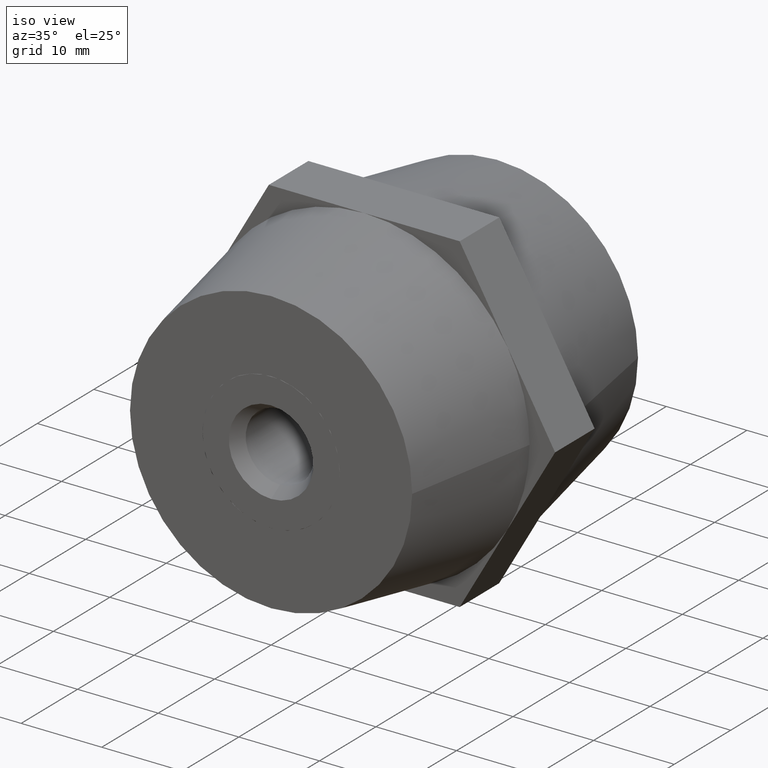
[diagram: clean part render]
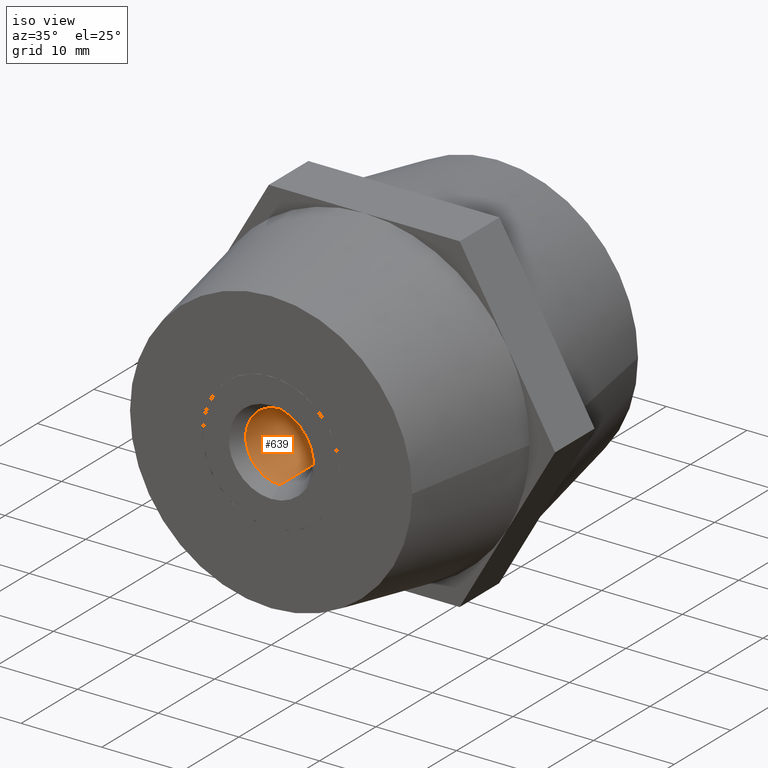
[diagram: same view with one face highlighted and labeled with its STEP entity id]
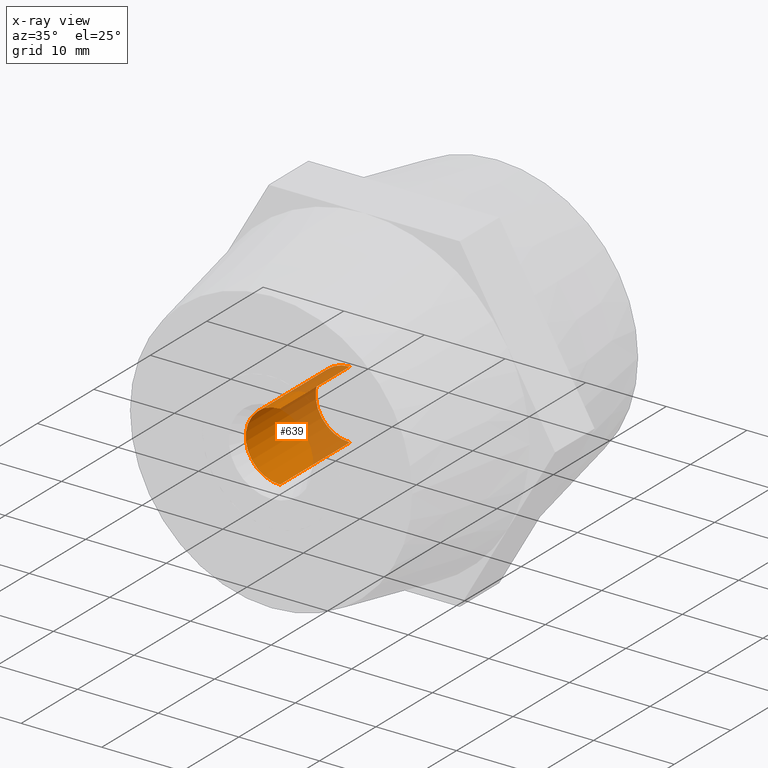
[diagram: x-ray of the same camera — body ghosted, the highlighted face saturated]
A machine part, iso view. The second image highlights one B-rep face of the part: STEP entity #639.
The next image is the same camera in x-ray: the body ghosted, the highlighted face saturated — about 37% of this face is hidden behind the body in this view.
In plain terms, the highlighted cylindrical surface (partial cylindrical patch) has radius 4.25 mm, axis along (-0, -1, 0).
Its self-contained STEP definition (entity closure, byte-faithful):
#5 = ORIENTED_EDGE ( 'NONE', *, *, #1758, .T. ) ;
#125 = CARTESIAN_POINT ( 'NONE',  ( 5.204748896376250700E-016, 15.43031442288250000, -4.250000000000000000 ) ) ;
#216 = ORIENTED_EDGE ( 'NONE', *, *, #2015, .F. ) ;
#295 = CARTESIAN_POINT ( 'NONE',  ( 0.0000000000000000000, 17.00000000000000000, 0.0000000000000000000 ) ) ;
#345 = DIRECTION ( 'NONE',  ( 0.0000000000000000000, 1.000000000000000000, 0.0000000000000000000 ) ) ;
#371 = AXIS2_PLACEMENT_3D ( 'NONE', #295, #2748, #1521 ) ;
#618 = EDGE_CURVE ( 'NONE', #2041, #3085, #3740, .T. ) ;
#620 = LINE ( 'NONE', #3438, #3787 ) ;
#639 = ADVANCED_FACE ( 'NONE', ( #1553 ), #1308, .F. ) ;
#896 = VERTEX_POINT ( 'NONE', #125 ) ;
#960 = AXIS2_PLACEMENT_3D ( 'NONE', #2768, #345, #1874 ) ;
#1147 = ORIENTED_EDGE ( 'NONE', *, *, #2884, .T. ) ;
#1308 = CYLINDRICAL_SURFACE ( 'NONE', #371, 4.250000000000000000 ) ;
#1394 = DIRECTION ( 'NONE',  ( 0.0000000000000000000, 1.000000000000000000, 0.0000000000000000000 ) ) ;
#1509 = CARTESIAN_POINT ( 'NONE',  ( 0.0000000000000000000, 3.050000000000000300, 0.0000000000000000000 ) ) ;
#1521 = DIRECTION ( 'NONE',  ( 0.0000000000000000000, 0.0000000000000000000, 1.000000000000000000 ) ) ;
#1553 = FACE_OUTER_BOUND ( 'NONE', #2608, .T. ) ;
#1758 = EDGE_CURVE ( 'NONE', #3651, #896, #2670, .T. ) ;
#1768 = ORIENTED_EDGE ( 'NONE', *, *, #618, .F. ) ;
#1831 = DIRECTION ( 'NONE',  ( 0.0000000000000000000, 1.000000000000000000, 0.0000000000000000000 ) ) ;
#1874 = DIRECTION ( 'NONE',  ( 0.0000000000000000000, 0.0000000000000000000, 1.000000000000000000 ) ) ;
#1970 = VECTOR ( 'NONE', #1394, 1000.000000000000000 ) ;
#2015 = EDGE_CURVE ( 'NONE', #3085, #896, #3583, .T. ) ;
#2041 = VERTEX_POINT ( 'NONE', #2287 ) ;
#2287 = CARTESIAN_POINT ( 'NONE',  ( 0.0000000000000000000, 3.050000000000000300, 4.250000000000000000 ) ) ;
#2608 = EDGE_LOOP ( 'NONE', ( #216, #1768, #1147, #5 ) ) ;
#2670 = CIRCLE ( 'NONE', #960, 4.250000000000000000 ) ;
#2693 = AXIS2_PLACEMENT_3D ( 'NONE', #1509, #1831, #3306 ) ;
#2748 = DIRECTION ( 'NONE',  ( 0.0000000000000000000, 1.000000000000000000, 0.0000000000000000000 ) ) ;
#2768 = CARTESIAN_POINT ( 'NONE',  ( 0.0000000000000000000, 15.43031442288250000, 0.0000000000000000000 ) ) ;
#2840 = DIRECTION ( 'NONE',  ( 0.0000000000000000000, 1.000000000000000000, 0.0000000000000000000 ) ) ;
#2868 = CARTESIAN_POINT ( 'NONE',  ( 5.204748896376250700E-016, 3.050000000000000300, -4.250000000000000000 ) ) ;
#2884 = EDGE_CURVE ( 'NONE', #2041, #3651, #620, .T. ) ;
#3035 = CARTESIAN_POINT ( 'NONE',  ( 0.0000000000000000000, 15.43031442288250000, 4.250000000000000000 ) ) ;
#3085 = VERTEX_POINT ( 'NONE', #2868 ) ;
#3306 = DIRECTION ( 'NONE',  ( 0.0000000000000000000, 0.0000000000000000000, 1.000000000000000000 ) ) ;
#3438 = CARTESIAN_POINT ( 'NONE',  ( 0.0000000000000000000, 17.00000000000000000, 4.250000000000000000 ) ) ;
#3506 = CARTESIAN_POINT ( 'NONE',  ( 5.204748896376250700E-016, 17.00000000000000000, -4.250000000000000000 ) ) ;
#3583 = LINE ( 'NONE', #3506, #1970 ) ;
#3651 = VERTEX_POINT ( 'NONE', #3035 ) ;
#3740 = CIRCLE ( 'NONE', #2693, 4.250000000000000000 ) ;
#3787 = VECTOR ( 'NONE', #2840, 1000.000000000000000 ) ;